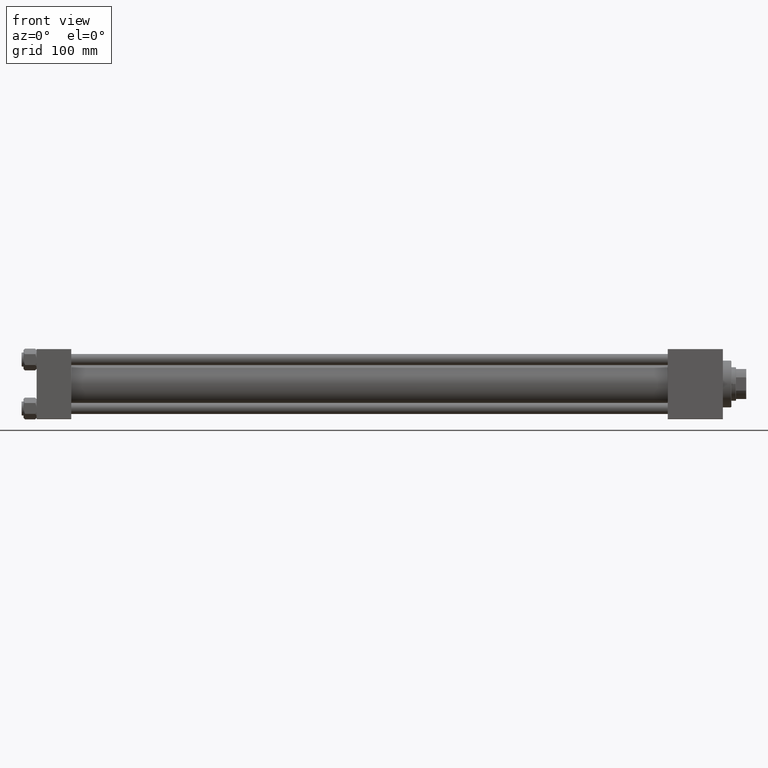
[diagram: clean part render]
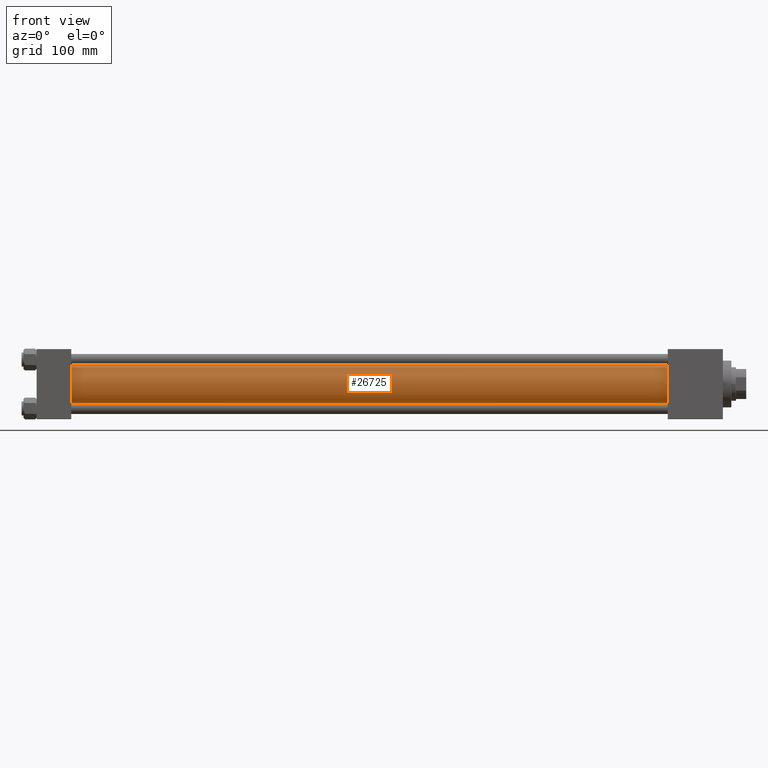
[diagram: same view with one face highlighted and labeled with its STEP entity id]
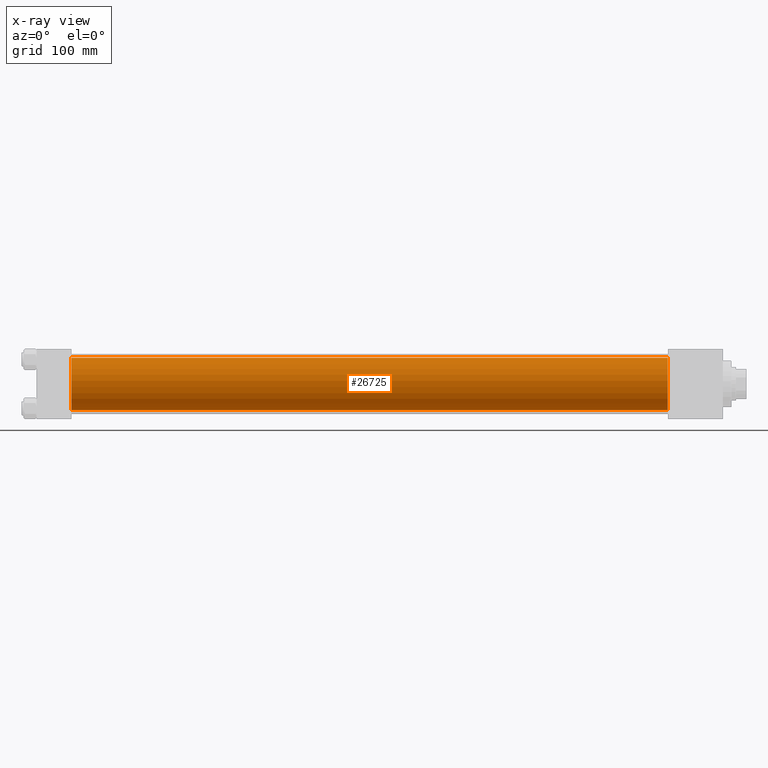
[diagram: x-ray of the same camera — body ghosted, the highlighted face saturated]
A machine part, front view. The second image highlights one B-rep face of the part: STEP entity #26725.
The next image is the same camera in x-ray: the body ghosted, the highlighted face saturated — about 0% of this face is hidden behind the body in this view.
In plain terms, the highlighted cylindrical surface (edge-blend (fillet) strip) has radius 28 mm, axis along (-1, -0, -0).
Its self-contained STEP definition (entity closure, byte-faithful):
#350 = AXIS2_PLACEMENT_3D ( 'NONE', #12498, #16551, #47697 ) ;
#2037 = AXIS2_PLACEMENT_3D ( 'NONE', #41199, #37870, #3221 ) ;
#3221 = DIRECTION ( 'NONE',  ( 0.000000000000000000, 0.000000000000000000, 1.000000000000000000 ) ) ;
#4489 = CARTESIAN_POINT ( 'NONE',  ( 675.0000000000000000, -2.602085213965210642E-15, 0.000000000000000000 ) ) ;
#5383 = DIRECTION ( 'NONE',  ( -1.000000000000000000, -0.000000000000000000, -0.000000000000000000 ) ) ;
#7283 = CARTESIAN_POINT ( 'NONE',  ( 675.0000000000000000, -2.602085213965210642E-15, 28.00000000000000000 ) ) ;
#8493 = VECTOR ( 'NONE', #36591, 1000.000000000000000 ) ;
#10161 = EDGE_CURVE ( 'NONE', #37063, #34825, #28542, .T. ) ;
#12385 = CYLINDRICAL_SURFACE ( 'NONE', #21316, 28.00000000000000000 ) ;
#12498 = CARTESIAN_POINT ( 'NONE',  ( 675.0000000000000000, -2.602085213965210642E-15, 0.000000000000000000 ) ) ;
#13881 = CARTESIAN_POINT ( 'NONE',  ( 675.0000000000000000, 8.269258236473784371E-16, -28.00000000000000000 ) ) ;
#16551 = DIRECTION ( 'NONE',  ( 1.000000000000000000, 0.000000000000000000, 0.000000000000000000 ) ) ;
#17664 = ORIENTED_EDGE ( 'NONE', *, *, #49532, .F. ) ;
#19721 = ORIENTED_EDGE ( 'NONE', *, *, #37062, .T. ) ;
#20808 = CARTESIAN_POINT ( 'NONE',  ( 37.00000000000003553, 8.269258236473784371E-16, -28.00000000000000000 ) ) ;
#21316 = AXIS2_PLACEMENT_3D ( 'NONE', #4489, #24085, #50393 ) ;
#24085 = DIRECTION ( 'NONE',  ( -1.000000000000000000, -0.000000000000000000, -0.000000000000000000 ) ) ;
#26725 = ADVANCED_FACE ( 'NONE', ( #46322 ), #12385, .T. ) ;
#27139 = LINE ( 'NONE', #13881, #8493 ) ;
#28542 = LINE ( 'NONE', #36480, #35657 ) ;
#31012 = VERTEX_POINT ( 'NONE', #20808 ) ;
#32096 = CIRCLE ( 'NONE', #2037, 28.00000000000000000 ) ;
#34825 = VERTEX_POINT ( 'NONE', #38290 ) ;
#35657 = VECTOR ( 'NONE', #5383, 1000.000000000000000 ) ;
#35946 = EDGE_LOOP ( 'NONE', ( #17664, #36314, #46795, #19721 ) ) ;
#36314 = ORIENTED_EDGE ( 'NONE', *, *, #47884, .F. ) ;
#36480 = CARTESIAN_POINT ( 'NONE',  ( 675.0000000000000000, -2.602085213965210642E-15, 28.00000000000000000 ) ) ;
#36591 = DIRECTION ( 'NONE',  ( -1.000000000000000000, -0.000000000000000000, -0.000000000000000000 ) ) ;
#37062 = EDGE_CURVE ( 'NONE', #34825, #31012, #32096, .T. ) ;
#37063 = VERTEX_POINT ( 'NONE', #7283 ) ;
#37316 = VERTEX_POINT ( 'NONE', #38067 ) ;
#37870 = DIRECTION ( 'NONE',  ( 1.000000000000000000, -0.000000000000000000, 0.000000000000000000 ) ) ;
#38067 = CARTESIAN_POINT ( 'NONE',  ( 675.0000000000000000, 8.269258236473784371E-16, -28.00000000000000000 ) ) ;
#38290 = CARTESIAN_POINT ( 'NONE',  ( 37.00000000000003553, -2.602085213965210642E-15, 28.00000000000000000 ) ) ;
#41199 = CARTESIAN_POINT ( 'NONE',  ( 37.00000000000003553, -2.602085213965210642E-15, 0.000000000000000000 ) ) ;
#45908 = CIRCLE ( 'NONE', #350, 28.00000000000000000 ) ;
#46322 = FACE_OUTER_BOUND ( 'NONE', #35946, .T. ) ;
#46795 = ORIENTED_EDGE ( 'NONE', *, *, #10161, .T. ) ;
#47697 = DIRECTION ( 'NONE',  ( 0.000000000000000000, 0.000000000000000000, -1.000000000000000000 ) ) ;
#47884 = EDGE_CURVE ( 'NONE', #37063, #37316, #45908, .T. ) ;
#49532 = EDGE_CURVE ( 'NONE', #37316, #31012, #27139, .T. ) ;
#50393 = DIRECTION ( 'NONE',  ( 0.000000000000000000, 0.000000000000000000, 1.000000000000000000 ) ) ;